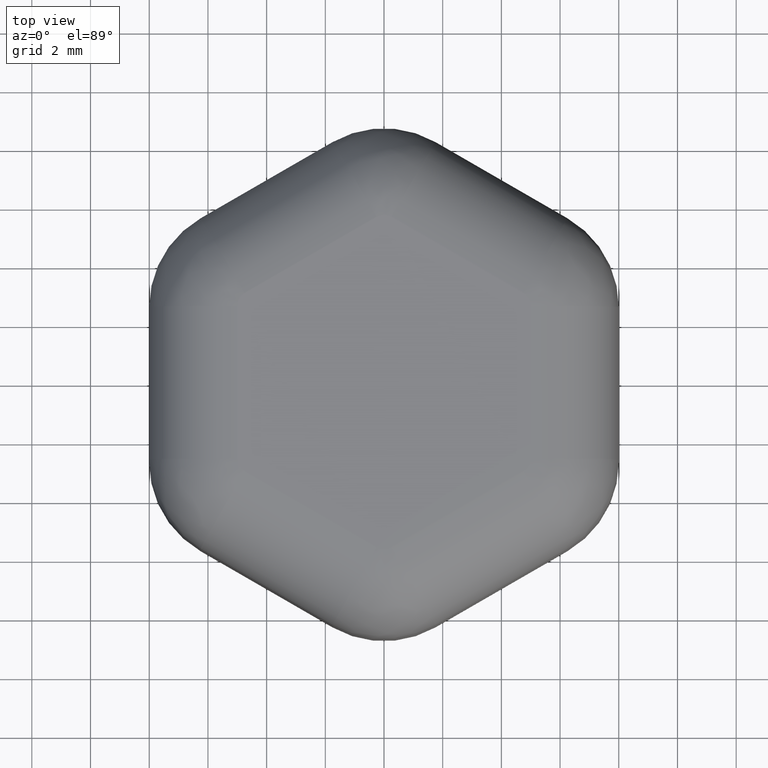
[diagram: clean part render]
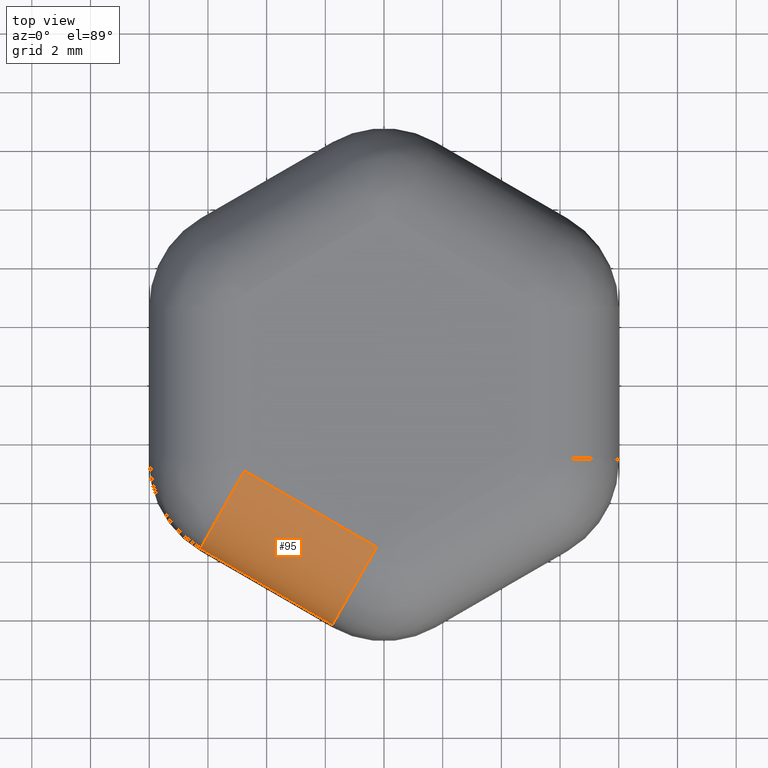
[diagram: same view with one face highlighted and labeled with its STEP entity id]
A machine part, top view. The second image highlights one B-rep face of the part: STEP entity #95.
In plain terms, the highlighted cylindrical surface (partial cylindrical patch) has radius 3 mm, axis along (-0.866, 0.5, -0).
Its self-contained STEP definition (entity closure, byte-faithful):
#95 = ADVANCED_FACE( '', ( #156 ), #157, .T. );
#156 = FACE_OUTER_BOUND( '', #279, .T. );
#157 = CYLINDRICAL_SURFACE( '', #280, 3.00000000000000 );
#279 = EDGE_LOOP( '', ( #575, #576, #577, #578 ) );
#280 = AXIS2_PLACEMENT_3D( '', #579, #580, #581 );
#575 = ORIENTED_EDGE( '', *, *, #775, .T. );
#576 = ORIENTED_EDGE( '', *, *, #754, .F. );
#577 = ORIENTED_EDGE( '', *, *, #773, .F. );
#578 = ORIENTED_EDGE( '', *, *, #770, .F. );
#579 = CARTESIAN_POINT( '', ( -0.249999999999999, -5.62916512459885, 5.00000000000000 ) );
#580 = DIRECTION( '', ( -0.866025403784439, 0.500000000000000, -1.06054021204601E-016 ) );
#581 = DIRECTION( '', ( -0.500000000000000, -0.866025403784439, -6.12303176911188E-017 ) );
#754 = EDGE_CURVE( '', #893, #896, #897, .T. );
#770 = EDGE_CURVE( '', #924, #903, #926, .F. );
#773 = EDGE_CURVE( '', #903, #893, #929, .T. );
#775 = EDGE_CURVE( '', #924, #896, #931, .T. );
#893 = VERTEX_POINT( '', #1083 );
#896 = VERTEX_POINT( '', #1087 );
#897 = LINE( '', #1088, #1089 );
#903 = VERTEX_POINT( '', #1098 );
#924 = VERTEX_POINT( '', #1124 );
#926 = LINE( '', #1126, #1127 );
#929 = CIRCLE( '', #1130, 3.00000000000000 );
#931 = CIRCLE( '', #1132, 3.00000000000000 );
#1083 = CARTESIAN_POINT( '', ( -1.75000000000000, -8.22724133595217, 5.00000000000000 ) );
#1087 = CARTESIAN_POINT( '', ( -6.25000000000000, -5.62916512459886, 5.00000000000000 ) );
#1088 = CARTESIAN_POINT( '', ( -6.25000000000000, -5.62916512459885, 5.00000000000000 ) );
#1089 = VECTOR( '', #1262, 1000.00000000000 );
#1098 = CARTESIAN_POINT( '', ( -0.249999999999999, -5.62916512459885, 8.00000000000000 ) );
#1124 = CARTESIAN_POINT( '', ( -4.75000000000000, -3.03108891324554, 8.00000000000000 ) );
#1126 = CARTESIAN_POINT( '', ( -0.249999999999999, -5.62916512459885, 8.00000000000000 ) );
#1127 = VECTOR( '', #1292, 1000.00000000000 );
#1130 = AXIS2_PLACEMENT_3D( '', #1299, #1300, #1301 );
#1132 = AXIS2_PLACEMENT_3D( '', #1305, #1306, #1307 );
#1262 = DIRECTION( '', ( -0.866025403784439, 0.500000000000000, -1.06054021204601E-016 ) );
#1292 = DIRECTION( '', ( -0.866025403784439, 0.500000000000000, -1.06054021204601E-016 ) );
#1299 = CARTESIAN_POINT( '', ( -0.249999999999998, -5.62916512459885, 5.00000000000000 ) );
#1300 = DIRECTION( '', ( 0.866025403784439, -0.500000000000000, 1.06054021204601E-016 ) );
#1301 = DIRECTION( '', ( -0.500000000000000, -0.866025403784439, -6.12303176911188E-017 ) );
#1305 = CARTESIAN_POINT( '', ( -4.75000000000000, -3.03108891324554, 5.00000000000000 ) );
#1306 = DIRECTION( '', ( 0.866025403784439, -0.500000000000000, 1.06054021204601E-016 ) );
#1307 = DIRECTION( '', ( -0.500000000000000, -0.866025403784439, -6.12303176911188E-017 ) );